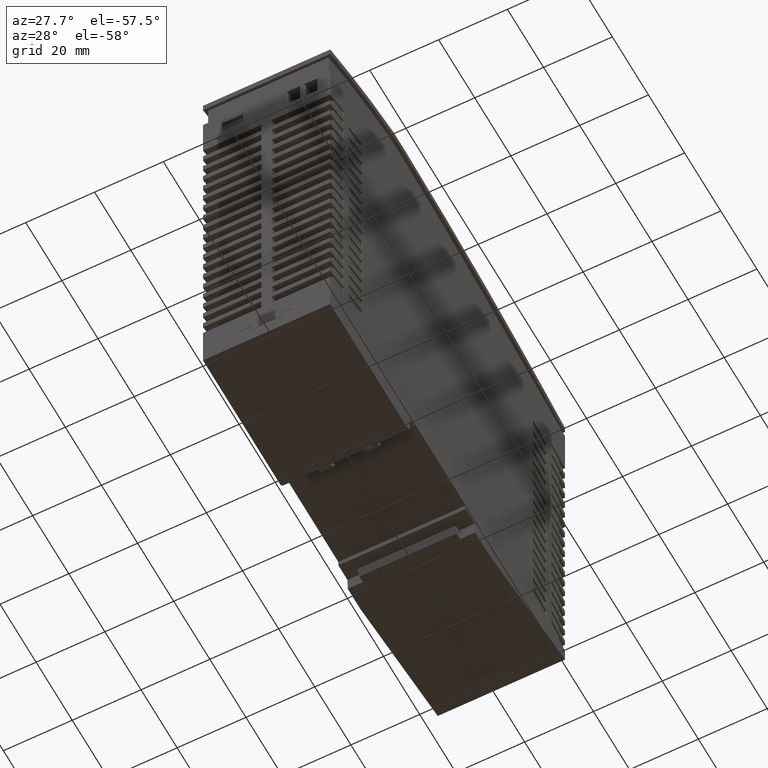
[diagram: clean part render]
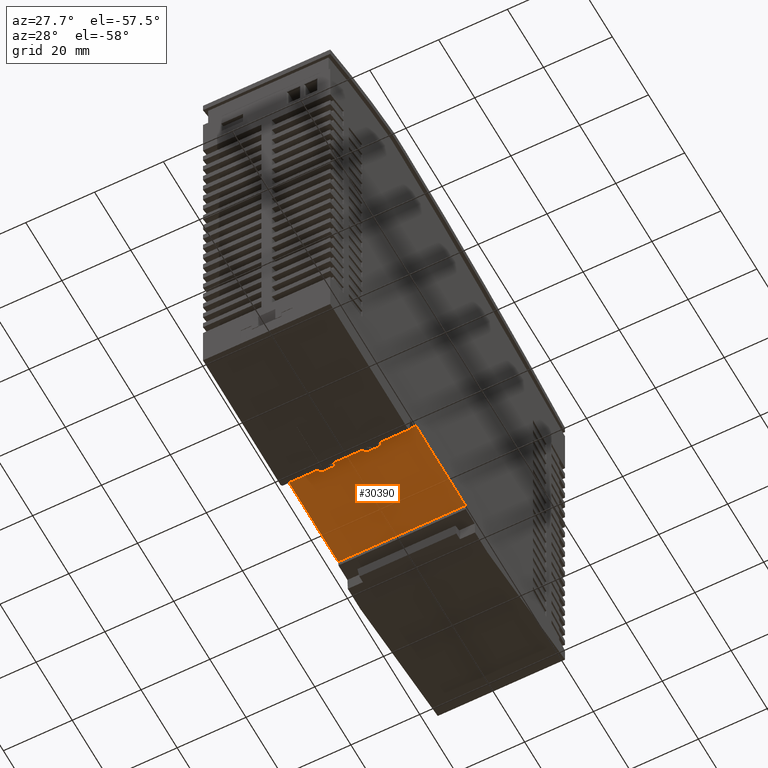
[diagram: same view with one face highlighted and labeled with its STEP entity id]
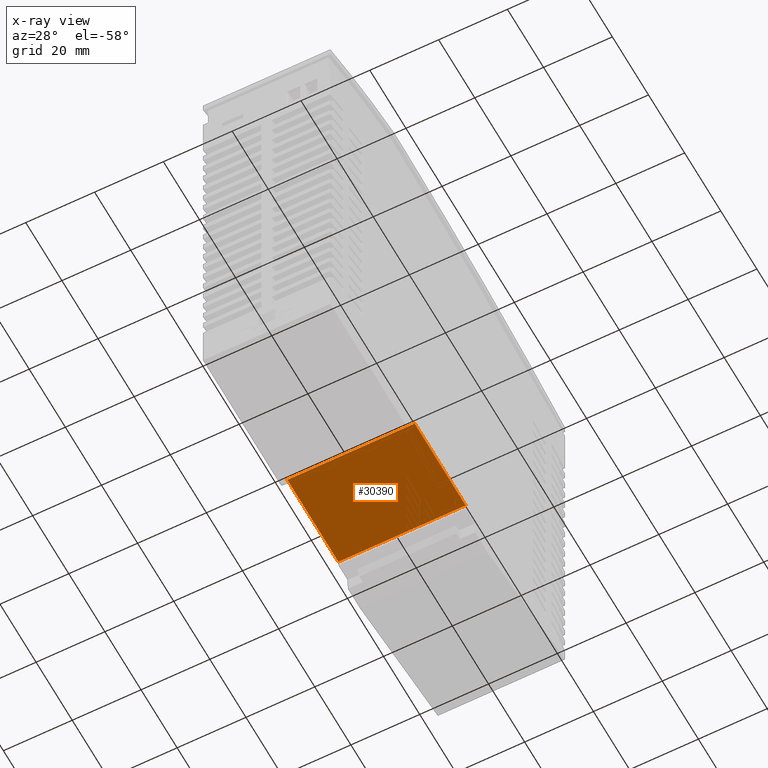
[diagram: x-ray of the same camera — body ghosted, the highlighted face saturated]
A machine part, auxiliary view. The second image highlights one B-rep face of the part: STEP entity #30390.
The next image is the same camera in x-ray: the body ghosted, the highlighted face saturated — about 0% of this face is hidden behind the body in this view.
In plain terms, the highlighted planar face has unit normal (0, 0, 1).
Its self-contained STEP definition (entity closure, byte-faithful):
#27270=CARTESIAN_POINT('',(-33.2,1.6,8.));
#27280=VERTEX_POINT('',#27270);
#27310=CARTESIAN_POINT('',(-14.9,1.6,8.));
#27320=DIRECTION('',(-1.,0.,0.));
#27330=VECTOR('',#27320,1.);
#27340=LINE('',#27310,#27330);
#27350=CARTESIAN_POINT('',(-5.,1.6,8.));
#27360=VERTEX_POINT('',#27350);
#27370=EDGE_CURVE('',#27360,#27280,#27340,.T.);
#29900=CARTESIAN_POINT('',(-5.,1.6,0.));
#29910=DIRECTION('',(0.,0.,-1.));
#29920=VECTOR('',#29910,1.);
#29930=LINE('',#29900,#29920);
#29940=CARTESIAN_POINT('',(-5.,1.6,45.));
#29950=VERTEX_POINT('',#29940);
#29960=EDGE_CURVE('',#29950,#27360,#29930,.T.);
#30160=CARTESIAN_POINT('',(-33.2,1.6,4.2999976));
#30170=DIRECTION('',(-0.,1.,0.));
#30180=DIRECTION('',(1.,0.,0.));
#30190=AXIS2_PLACEMENT_3D('',#30160,#30170,#30180);
#30200=PLANE('',#30190);
#30210=CARTESIAN_POINT('',(-33.1999999999971,1.6,0.));
#30220=DIRECTION('',(0.,0.,1.));
#30230=VECTOR('',#30220,1.);
#30240=LINE('',#30210,#30230);
#30250=CARTESIAN_POINT('',(-33.1999999999971,1.6,45.));
#30260=VERTEX_POINT('',#30250);
#30270=EDGE_CURVE('',#27280,#30260,#30240,.T.);
#30280=ORIENTED_EDGE('',*,*,#30270,.F.);
#30290=CARTESIAN_POINT('',(-14.9,1.6,45.));
#30300=DIRECTION('',(-1.,0.,0.));
#30310=VECTOR('',#30300,1.);
#30320=LINE('',#30290,#30310);
#30330=EDGE_CURVE('',#29950,#30260,#30320,.T.);
#30340=ORIENTED_EDGE('',*,*,#30330,.T.);
#30350=ORIENTED_EDGE('',*,*,#29960,.F.);
#30360=ORIENTED_EDGE('',*,*,#27370,.F.);
#30370=EDGE_LOOP('',(#30360,#30350,#30340,#30280));
#30380=FACE_OUTER_BOUND('',#30370,.T.);
#30390=ADVANCED_FACE('',(#30380),#30200,.F.);